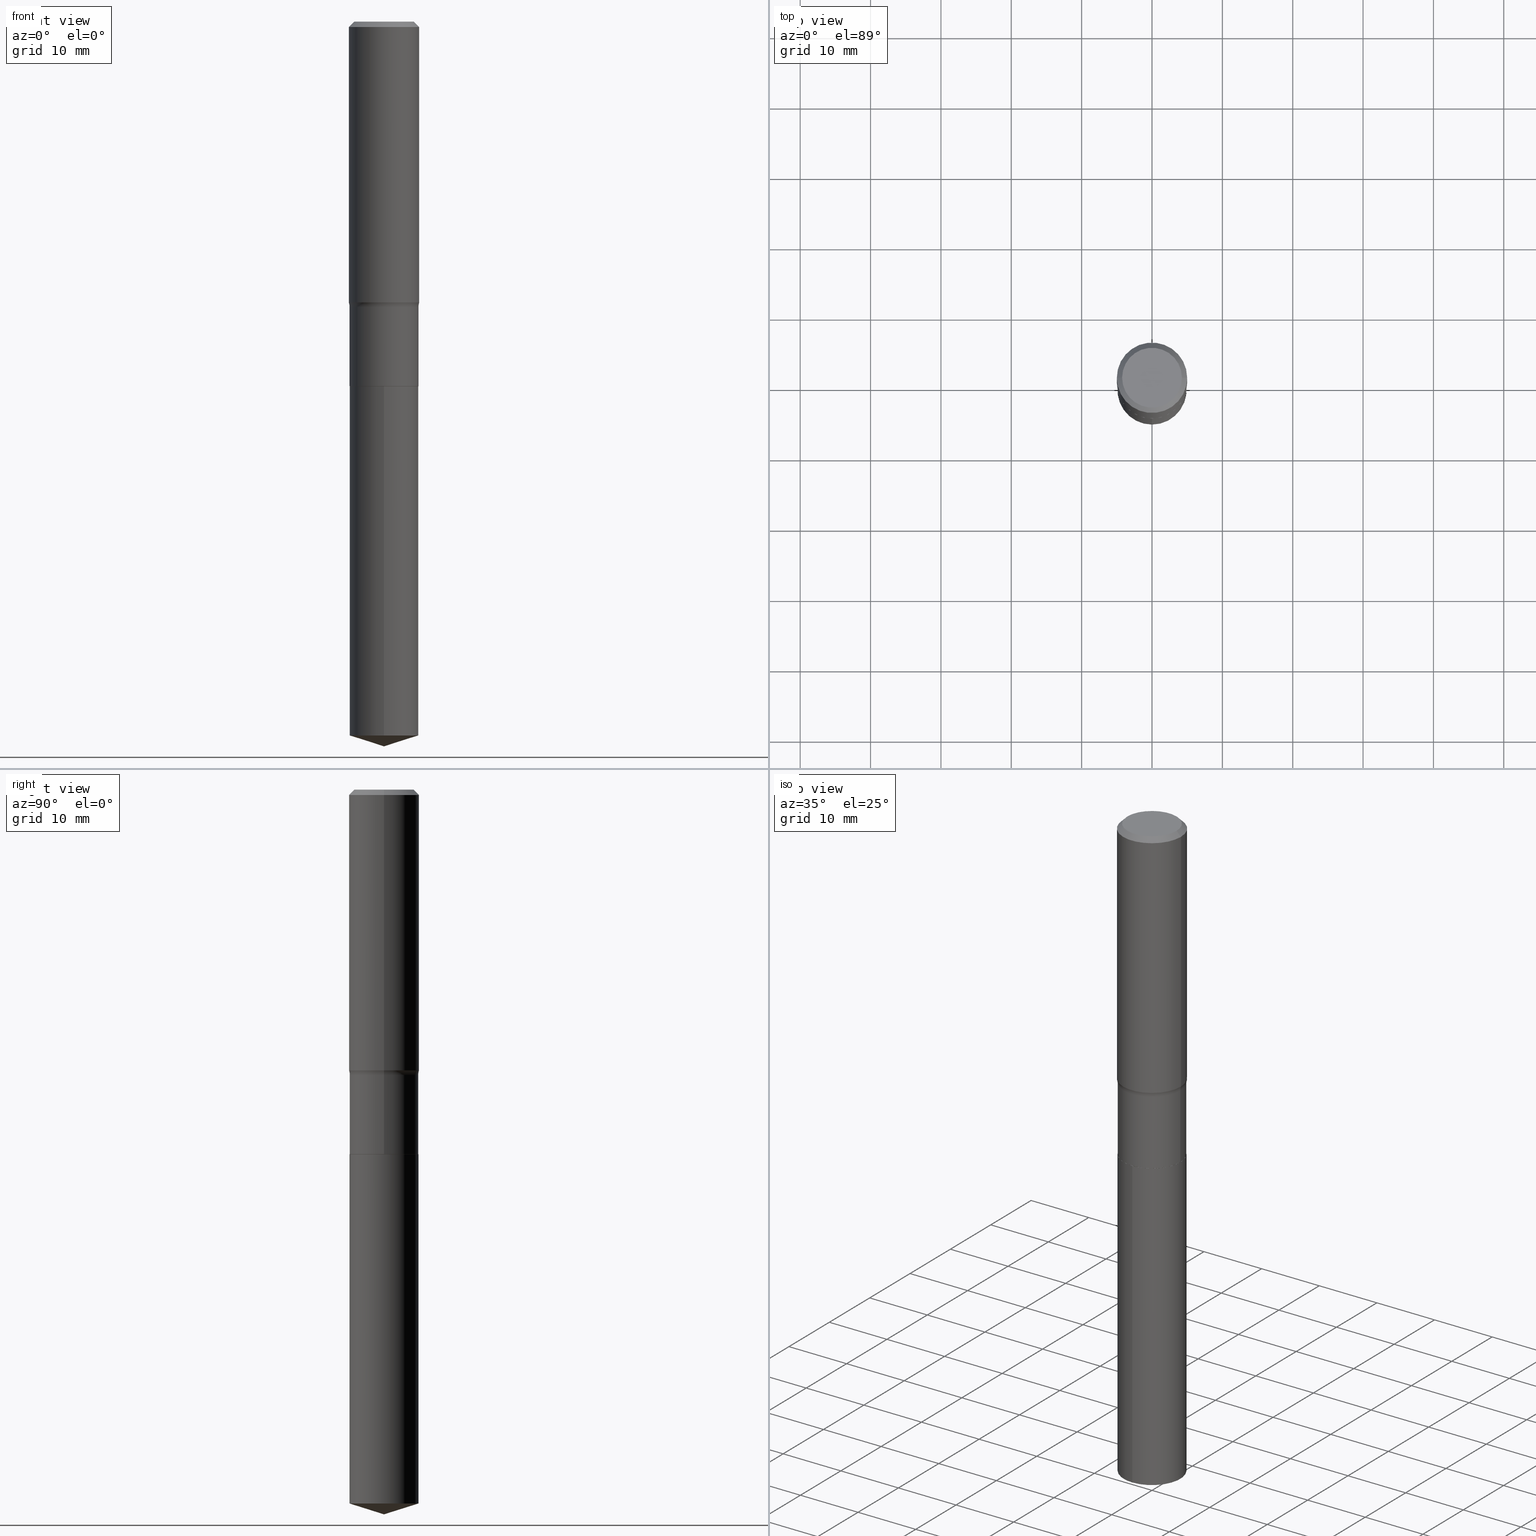
[diagram: canonical four-view strip — front | top / right | iso, engineering-drawing reading convention]
A machine part, canonical four-view strip (front | top / right | iso — engineering-drawing reading convention). The complete STEP part file that produces these views, byte-faithful:
ISO-10303-21;
HEADER;
FILE_DESCRIPTION (( 'STEP AP203' ),
    '1' );
FILE_NAME ('64172.STEP',
    '2024-04-19T15:27:30',
    ( '' ),
    ( '' ),
    'SwSTEP 2.0',
    'SolidWorks 2023',
    '' );
FILE_SCHEMA (( 'CONFIG_CONTROL_DESIGN' ));
ENDSEC;

DATA;
#1 = CIRCLE ( 'NONE', #356, 0.1968500000000000250 ) ;
#2 = PERSON_AND_ORGANIZATION ( #176, #197 ) ;
#3 = EDGE_LOOP ( 'NONE', ( #14, #150, #79, #184 ) ) ;
#4 = ORIENTED_EDGE ( 'NONE', *, *, #112, .F. ) ;
#5 = CARTESIAN_POINT ( 'NONE',  ( 3.901990027149005041E-29, -5.571007624258123859E-15, -1.595600000000000351 ) ) ;
#6 = CIRCLE ( 'NONE', #445, 0.1928999999999999881 ) ;
#7 = EDGE_LOOP ( 'NONE', ( #147, #271 ) ) ;
#8 = VECTOR ( 'NONE', #275, 39.37007874015748143 ) ;
#9 = DIRECTION ( 'NONE',  ( -2.445554267651848899E-29, 3.491358953158648949E-15, 1.000000000000000000 ) ) ;
#10 = AXIS2_PLACEMENT_3D ( 'NONE', #238, #474, #290 ) ;
#11 = CIRCLE ( 'NONE', #141, 0.1673224999999999851 ) ;
#12 = DIRECTION ( 'NONE',  ( -6.982962677686265133E-15, -1.000000000000000000, 2.832398127179122126E-15 ) ) ;
#13 = CARTESIAN_POINT ( 'NONE',  ( -0.1673224999999999851, 1.219954130253505263E-15, 4.096137381439757534E-18 ) ) ;
#14 = ORIENTED_EDGE ( 'NONE', *, *, #112, .T. ) ;
#15 = DIRECTION ( 'NONE',  ( 2.445468806185136597E-29, -3.491481338843145583E-15, -1.000000000000000000 ) ) ;
#16 = DIRECTION ( 'NONE',  ( -2.445554267651848899E-29, 3.491358953158648949E-15, 1.000000000000000000 ) ) ;
#17 = CARTESIAN_POINT ( 'NONE',  ( -1.001697619218021790E-46, 1.430158722866389718E-32, 4.096137381448108366E-18 ) ) ;
#18 = VECTOR ( 'NONE', #62, 39.37007874015748143 ) ;
#19 = CARTESIAN_POINT ( 'NONE',  ( 1.370636937281282873E-15, 0.1928999999999928272, -2.039300000000000779 ) ) ;
#20 = DIRECTION ( 'NONE',  ( 1.000000000000000000, -6.982962677686265922E-15, 0.000000000000000000 ) ) ;
#21 = DATE_TIME_ROLE ( 'classification_date' ) ;
#22 = EDGE_CURVE ( 'NONE', #254, #371, #113, .T. ) ;
#23 = CARTESIAN_POINT ( 'NONE',  ( 4.987044536453349004E-29, -7.120177894302827657E-15, -2.039299999999999891 ) ) ;
#24 = CIRCLE ( 'NONE', #252, 0.1968500000000002470 ) ;
#25 = DIRECTION ( 'NONE',  ( -2.445554267651849179E-29, 3.491358953158648949E-15, 1.000000000000000000 ) ) ;
#26 = FACE_OUTER_BOUND ( 'NONE', #261, .T. ) ;
#27 = APPROVAL_DATE_TIME ( #94, #180 ) ;
#28 = DIRECTION ( 'NONE',  ( 1.000000000000000000, -6.982962677686266711E-15, 0.000000000000000000 ) ) ;
#29 = CC_DESIGN_PERSON_AND_ORGANIZATION_ASSIGNMENT ( #2, #105, ( #397 ) ) ;
#30 = DATE_TIME_ROLE ( 'creation_date' ) ;
#31 = VECTOR ( 'NONE', #201, 39.37007874015748143 ) ;
#32 = ORIENTED_EDGE ( 'NONE', *, *, #478, .F. ) ;
#33 = EDGE_LOOP ( 'NONE', ( #50, #451, #328, #491 ) ) ;
#34 = EDGE_CURVE ( 'NONE', #38, #301, #81, .T. ) ;
#35 = ORIENTED_EDGE ( 'NONE', *, *, #367, .T. ) ;
#36 = CARTESIAN_POINT ( 'NONE',  ( 0.000000000000000000, 0.000000000000000000, 0.000000000000000000 ) ) ;
#37 = CIRCLE ( 'NONE', #78, 0.07800000000000002764 ) ;
#38 = VERTEX_POINT ( 'NONE', #346 ) ;
#39 = AXIS2_PLACEMENT_3D ( 'NONE', #233, #386, #391 ) ;
#40 = ORIENTED_EDGE ( 'NONE', *, *, #423, .T. ) ;
#41 = DIRECTION ( 'NONE',  ( -6.982962677686265133E-15, -1.000000000000000000, 2.832398127179122126E-15 ) ) ;
#42 = EDGE_CURVE ( 'NONE', #447, #257, #448, .T. ) ;
#43 = CC_DESIGN_APPROVAL ( #180, ( #52 ) ) ;
#44 = FACE_OUTER_BOUND ( 'NONE', #292, .T. ) ;
#45 = LINE ( 'NONE', #311, #300 ) ;
#46 = ORIENTED_EDGE ( 'NONE', *, *, #178, .T. ) ;
#47 = ADVANCED_FACE ( 'NONE', ( #44 ), #335, .T. ) ;
#48 = DIRECTION ( 'NONE',  ( -2.445554267651848899E-29, 3.491358953158648949E-15, 1.000000000000000000 ) ) ;
#49 = ADVANCED_FACE ( 'NONE', ( #395 ), #212, .T. ) ;
#50 = ORIENTED_EDGE ( 'NONE', *, *, #316, .T. ) ;
#51 = CARTESIAN_POINT ( 'NONE',  ( -1.347013500525630576E-15, -0.1929000000000071213, -2.039299999999999446 ) ) ;
#52 = PRODUCT_DEFINITION_FORMATION_WITH_SPECIFIED_SOURCE ( 'ANY', '', #397, .NOT_KNOWN. ) ;
#53 = CARTESIAN_POINT ( 'NONE',  ( 9.916970167242287557E-29, -1.415780969095363941E-14, -4.055100000000000371 ) ) ;
#54 = VECTOR ( 'NONE', #189, 39.37007874015748143 ) ;
#55 = ADVANCED_FACE ( 'NONE', ( #425 ), #77, .F. ) ;
#56 = CARTESIAN_POINT ( 'NONE',  ( 4.987044536453349565E-29, -7.120177894302827657E-15, -2.039300000000000335 ) ) ;
#57 = ORIENTED_EDGE ( 'NONE', *, *, #178, .F. ) ;
#58 = DIRECTION ( 'NONE',  ( -0.7071067811865452413, 2.468850131082233000E-15, -0.7071067811865497932 ) ) ;
#59 = PERSON_AND_ORGANIZATION ( #176, #197 ) ;
#60 = EDGE_CURVE ( 'NONE', #301, #38, #151, .T. ) ;
#61 = CARTESIAN_POINT ( 'NONE',  ( 0.1928999999999999049, -6.918021124783804133E-15, -1.595600000000000351 ) ) ;
#62 = DIRECTION ( 'NONE',  ( 0.7071067811864267805, -2.468850131080992517E-15, 0.7071067811866682540 ) ) ;
#63 = ORIENTED_EDGE ( 'NONE', *, *, #34, .T. ) ;
#64 = PERSON_AND_ORGANIZATION ( #176, #197 ) ;
#65 = DIRECTION ( 'NONE',  ( 1.000000000000000000, -6.982962677686267499E-15, 4.876294436782262290E-29 ) ) ;
#66 = CARTESIAN_POINT ( 'NONE',  ( 3.901990027149005041E-29, -5.571007624258123859E-15, -1.595600000000000351 ) ) ;
#67 = CALENDAR_DATE ( 2024, 19, 4 ) ;
#68 = AXIS2_PLACEMENT_3D ( 'NONE', #318, #475, #121 ) ;
#69 = DIRECTION ( 'NONE',  ( -2.445468806185136597E-29, 3.491481338843145583E-15, 1.000000000000000000 ) ) ;
#70 = CIRCLE ( 'NONE', #163, 0.1968500000000002470 ) ;
#71 = ADVANCED_FACE ( 'NONE', ( #244 ), #382, .F. ) ;
#72 =( NAMED_UNIT ( * ) PLANE_ANGLE_UNIT ( ) SI_UNIT ( $, .RADIAN. ) );
#73 = DIRECTION ( 'NONE',  ( 1.000000000000000000, 0.000000000000000000, 0.000000000000000000 ) ) ;
#74 = CIRCLE ( 'NONE', #186, 0.1928999999999999049 ) ;
#75 = PERSON_AND_ORGANIZATION ( #176, #197 ) ;
#76 = CARTESIAN_POINT ( 'NONE',  ( 0.000000000000000000, 0.000000000000000000, 0.000000000000000000 ) ) ;
#77 = PLANE ( 'NONE',  #465 ) ;
#78 = AXIS2_PLACEMENT_3D ( 'NONE', #403, #277, #196 ) ;
#79 = ORIENTED_EDGE ( 'NONE', *, *, #367, .F. ) ;
#80 = EDGE_CURVE ( 'NONE', #301, #254, #442, .T. ) ;
#81 = CIRCLE ( 'NONE', #39, 0.1923999999999999877 ) ;
#82 = CARTESIAN_POINT ( 'NONE',  ( 1.370636937281330796E-15, 0.1928999999999860826, -3.994278863625245535 ) ) ;
#83 = CARTESIAN_POINT ( 'NONE',  ( 0.000000000000000000, 0.000000000000000000, 0.000000000000000000 ) ) ;
#84 = DIRECTION ( 'NONE',  ( -2.445468806185136877E-29, 3.491481338843145188E-15, 1.000000000000000000 ) ) ;
#85 = APPROVAL ( #405, 'UNSPECIFIED' ) ;
#86 = DIRECTION ( 'NONE',  ( 1.000000000000000000, -6.982962677686266711E-15, 0.000000000000000000 ) ) ;
#87 = CARTESIAN_POINT ( 'NONE',  ( 4.987044536453349004E-29, -7.120177894302827657E-15, -2.039299999999999891 ) ) ;
#88 = DIRECTION ( 'NONE',  ( -6.982962677686266711E-15, -1.000000000000000000, 3.491481338843145583E-15 ) ) ;
#89 = DIRECTION ( 'NONE',  ( -2.445468806185136597E-29, 3.491481338843145583E-15, 1.000000000000000000 ) ) ;
#90 = CARTESIAN_POINT ( 'NONE',  ( -1.347013500525583047E-15, -0.1929000000000139492, -3.994278863625244647 ) ) ;
#91 = CARTESIAN_POINT ( 'NONE',  ( 7.220858017463213864E-31, -1.030947152326917226E-16, -0.02952750000000021330 ) ) ;
#92 = CARTESIAN_POINT ( 'NONE',  ( 0.1923999999999999877, -8.463699913489665713E-15, -2.039300000000000335 ) ) ;
#93 = ORIENTED_EDGE ( 'NONE', *, *, #490, .T. ) ;
#94 = DATE_AND_TIME ( #124, #333 ) ;
#95 = DIRECTION ( 'NONE',  ( -6.982962677686266711E-15, -1.000000000000000000, 3.500519750498693388E-15 ) ) ;
#96 = CARTESIAN_POINT ( 'NONE',  ( 7.220858017463213864E-31, -1.030947152326917226E-16, -0.02952750000000021330 ) ) ;
#97 = PERSON_AND_ORGANIZATION_ROLE ( 'creator' ) ;
#98 = VECTOR ( 'NONE', #211, 39.37007874015748143 ) ;
#99 = AXIS2_PLACEMENT_3D ( 'NONE', #253, #280, #28 ) ;
#100 = ORIENTED_EDGE ( 'NONE', *, *, #195, .F. ) ;
#101 = CC_DESIGN_SECURITY_CLASSIFICATION ( #396, ( #52 ) ) ;
#102 = MANIFOLD_SOLID_BREP ( 'Body-Move/Copy2[2]', #325 ) ;
#103 = ORIENTED_EDGE ( 'NONE', *, *, #316, .F. ) ;
#104 = ORIENTED_EDGE ( 'NONE', *, *, #441, .T. ) ;
#105 = PERSON_AND_ORGANIZATION_ROLE ( 'design_owner' ) ;
#106 = CARTESIAN_POINT ( 'NONE',  ( 7.220858017463213864E-31, -1.030947152326917226E-16, -0.02952750000000021330 ) ) ;
#107 = AXIS2_PLACEMENT_3D ( 'NONE', #265, #352, #12 ) ;
#108 = FACE_OUTER_BOUND ( 'NONE', #132, .T. ) ;
#109 = ORIENTED_EDGE ( 'NONE', *, *, #42, .T. ) ;
#110 = DESIGN_CONTEXT ( 'detailed design', #462, 'design' ) ;
#111 = CARTESIAN_POINT ( 'NONE',  ( -0.1968500000000000250, -1.395564769284339934E-15, -0.02952750000000021330 ) ) ;
#112 = EDGE_CURVE ( 'NONE', #254, #389, #293, .T. ) ;
#113 = LINE ( 'NONE', #459, #54 ) ;
#114 = CARTESIAN_POINT ( 'NONE',  ( -0.1968500000000002470, -4.086738198679745970E-15, -1.571092909189378828 ) ) ;
#115 = VECTOR ( 'NONE', #393, 39.37007874015748854 ) ;
#116 = CARTESIAN_POINT ( 'NONE',  ( 9.768051439561228148E-29, -1.394571085305674825E-14, -3.994278863625245091 ) ) ;
#117 = DIRECTION ( 'NONE',  ( -0.7071067811864267805, 7.493145998869918709E-15, 0.7071067811866682540 ) ) ;
#118 = FACE_OUTER_BOUND ( 'NONE', #416, .T. ) ;
#119 = FACE_OUTER_BOUND ( 'NONE', #379, .T. ) ;
#120 = CARTESIAN_POINT ( 'NONE',  ( 0.1968500000000000250, -1.453583746094017706E-15, -0.02952750000000021330 ) ) ;
#121 = DIRECTION ( 'NONE',  ( -6.982962677686266711E-15, -1.000000000000000000, 3.500519750498693388E-15 ) ) ;
#122 = CONICAL_SURFACE ( 'NONE', #148, 124.8659371009154597, 1.265363707695892570 ) ;
#123 = EDGE_LOOP ( 'NONE', ( #32, #218, #466, #456 ) ) ;
#124 = CALENDAR_DATE ( 2024, 19, 4 ) ;
#125 = AXIS2_PLACEMENT_3D ( 'NONE', #444, #213, #136 ) ;
#126 = CARTESIAN_POINT ( 'NONE',  ( 0.1673224999999999851, -1.300749711163072397E-15, 4.096137381456741925E-18 ) ) ;
#127 = AXIS2_PLACEMENT_3D ( 'NONE', #56, #69, #229 ) ;
#128 = ORIENTED_EDGE ( 'NONE', *, *, #214, .T. ) ;
#129 = CALENDAR_DATE ( 2024, 19, 4 ) ;
#130 = FACE_OUTER_BOUND ( 'NONE', #123, .T. ) ;
#131 = LINE ( 'NONE', #481, #98 ) ;
#132 = EDGE_LOOP ( 'NONE', ( #385, #128 ) ) ;
#133 = EDGE_CURVE ( 'NONE', #227, #337, #1, .T. ) ;
#134 = CYLINDRICAL_SURFACE ( 'NONE', #125, 0.1928999999999999326 ) ;
#135 = ORIENTED_EDGE ( 'NONE', *, *, #195, .T. ) ;
#136 = DIRECTION ( 'NONE',  ( 1.000000000000000000, -6.982962677686267499E-15, 4.876176775795936353E-29 ) ) ;
#137 = ORIENTED_EDGE ( 'NONE', *, *, #42, .F. ) ;
#138 = APPROVAL_ROLE ( '' ) ;
#139 = AXIS2_PLACEMENT_3D ( 'NONE', #5, #457, #193 ) ;
#140 = COORDINATED_UNIVERSAL_TIME_OFFSET ( 5, 0, .BEHIND. ) ;
#141 = AXIS2_PLACEMENT_3D ( 'NONE', #461, #374, #65 ) ;
#142 = ADVANCED_FACE ( 'NONE', ( #26 ), #341, .F. ) ;
#143 = ADVANCED_FACE ( 'NONE', ( #329 ), #134, .T. ) ;
#144 = CIRCLE ( 'NONE', #255, 0.1968500000000000250 ) ;
#145 = AXIS2_PLACEMENT_3D ( 'NONE', #208, #446, #364 ) ;
#146 = CARTESIAN_POINT ( 'NONE',  ( 0.1923999999999999877, -8.463699913489665713E-15, -2.039300000000000335 ) ) ;
#147 = ORIENTED_EDGE ( 'NONE', *, *, #60, .F. ) ;
#148 = AXIS2_PLACEMENT_3D ( 'NONE', #168, #273, #95 ) ;
#149 = DIRECTION ( 'NONE',  ( -2.445468806185136597E-29, 3.491481338843145583E-15, 1.000000000000000000 ) ) ;
#150 = ORIENTED_EDGE ( 'NONE', *, *, #478, .T. ) ;
#151 = CIRCLE ( 'NONE', #99, 0.1923999999999999877 ) ;
#152 = ADVANCED_FACE ( 'NONE', ( #119 ), #294, .T. ) ;
#153 = DIRECTION ( 'NONE',  ( -1.000000000000000000, 6.982962677686265922E-15, 0.000000000000000000 ) ) ;
#154 = FACE_OUTER_BOUND ( 'NONE', #155, .T. ) ;
#155 = EDGE_LOOP ( 'NONE', ( #46, #450, #349, #100 ) ) ;
#156 = EDGE_LOOP ( 'NONE', ( #424, #344, #340, #313 ) ) ;
#157 = DIRECTION ( 'NONE',  ( -2.445468806185136597E-29, 3.491481338843145583E-15, 1.000000000000000000 ) ) ;
#158 = AXIS2_PLACEMENT_3D ( 'NONE', #17, #479, #162 ) ;
#159 = ADVANCED_FACE ( 'NONE', ( #400 ), #438, .T. ) ;
#160 = ORIENTED_EDGE ( 'NONE', *, *, #243, .F. ) ;
#161 = CC_DESIGN_DATE_AND_TIME_ASSIGNMENT ( #437, #30, ( #449 ) ) ;
#162 = DIRECTION ( 'NONE',  ( 1.000000000000000000, -6.982962677686267499E-15, 4.876294436782262290E-29 ) ) ;
#163 = AXIS2_PLACEMENT_3D ( 'NONE', #323, #89, #247 ) ;
#164 = CARTESIAN_POINT ( 'NONE',  ( 0.1968500000000002470, -6.860037777126047733E-15, -1.571092909189378828 ) ) ;
#165 = FACE_OUTER_BOUND ( 'NONE', #302, .T. ) ;
#166 = ORIENTED_EDGE ( 'NONE', *, *, #214, .F. ) ;
#167 = DATE_AND_TIME ( #67, #426 ) ;
#168 = CARTESIAN_POINT ( 'NONE',  ( -8.636487125159550916E-28, 1.232970176239297701E-13, 35.31497874015747840 ) ) ;
#169 = CONICAL_SURFACE ( 'NONE', #68, 124.8659371009154597, 1.265363707695892570 ) ;
#170 = APPROVAL_ROLE ( '' ) ;
#171 = DIRECTION ( 'NONE',  ( -2.445554267651848899E-29, 3.491358953158648949E-15, 1.000000000000000000 ) ) ;
#172 = EDGE_LOOP ( 'NONE', ( #419, #63, #365, #160 ) ) ;
#173 = DATE_AND_TIME ( #330, #179 ) ;
#174 = PERSON_AND_ORGANIZATION_ROLE ( 'creator' ) ;
#175 =( CONVERSION_BASED_UNIT ( 'INCH', #376 ) LENGTH_UNIT ( ) NAMED_UNIT ( #428 ) );
#176 = PERSON ( 'UNSPECIFIED', 'UNSPECIFIED', 'UNSPECIFIED', ('UNSPECIFIED'), ('UNSPECIFIED'), ('UNSPECIFIED') ) ;
#177 = PERSON_AND_ORGANIZATION_ROLE ( 'classification_officer' ) ;
#178 = EDGE_CURVE ( 'NONE', #257, #447, #415, .T. ) ;
#179 = LOCAL_TIME ( 11, 27, 30.00000000000000000, #411 ) ;
#180 = APPROVAL ( #486, 'UNSPECIFIED' ) ;
#181 = AXIS2_PLACEMENT_3D ( 'NONE', #306, #15, #153 ) ;
#182 = EDGE_LOOP ( 'NONE', ( #319, #103, #362, #35 ) ) ;
#183 = EDGE_CURVE ( 'NONE', #384, #337, #232, .T. ) ;
#184 = ORIENTED_EDGE ( 'NONE', *, *, #22, .F. ) ;
#185 = CC_DESIGN_PERSON_AND_ORGANIZATION_ASSIGNMENT ( #64, #174, ( #449 ) ) ;
#186 = AXIS2_PLACEMENT_3D ( 'NONE', #66, #157, #436 ) ;
#187 = VERTEX_POINT ( 'NONE', #114 ) ;
#188 = CARTESIAN_POINT ( 'NONE',  ( 3.842058701041283237E-29, -5.485441574023504547E-15, -1.571092909189378828 ) ) ;
#189 = DIRECTION ( 'NONE',  ( -2.445468806185136877E-29, 3.491481338843145188E-15, 1.000000000000000000 ) ) ;
#190 = AXIS2_PLACEMENT_3D ( 'NONE', #471, #88, #251 ) ;
#191 = DIRECTION ( 'NONE',  ( 2.445554267651848618E-29, -3.491358953158648949E-15, -1.000000000000000000 ) ) ;
#192 = CIRCLE ( 'NONE', #390, 0.1928999999999999881 ) ;
#193 = DIRECTION ( 'NONE',  ( 1.000000000000000000, -6.982962677686267499E-15, 0.000000000000000000 ) ) ;
#194 = LINE ( 'NONE', #307, #383 ) ;
#195 = EDGE_CURVE ( 'NONE', #257, #358, #45, .T. ) ;
#196 = DIRECTION ( 'NONE',  ( -1.000000000000000000, 7.105427357601001859E-15, 0.000000000000000000 ) ) ;
#197 = ORGANIZATION ( 'UNSPECIFIED', 'UNSPECIFIED', '' ) ;
#198 = AXIS2_PLACEMENT_3D ( 'NONE', #343, #9, #41 ) ;
#199 = DIRECTION ( 'NONE',  ( -2.445468806185136597E-29, 3.491481338843145583E-15, 1.000000000000000000 ) ) ;
#200 = CLOSED_SHELL ( 'NONE', ( #297, #492, #463, #453, #336 ) ) ;
#201 = DIRECTION ( 'NONE',  ( 6.776566513254258926E-15, 0.9537169507482290420, 0.3007057995042663467 ) ) ;
#202 = DIRECTION ( 'NONE',  ( 1.000000000000000000, -6.982962677686268288E-15, 4.883557194083114022E-29 ) ) ;
#203 = COORDINATED_UNIVERSAL_TIME_OFFSET ( 5, 0, .BEHIND. ) ;
#204 = DIRECTION ( 'NONE',  ( -6.982962677686265133E-15, -1.000000000000000000, 2.832398127179122126E-15 ) ) ;
#205 = CARTESIAN_POINT ( 'NONE',  ( -0.1968500000000000250, 1.271501487869850120E-15, -0.02952750000000021330 ) ) ;
#206 = PERSON_AND_ORGANIZATION_ROLE ( 'design_supplier' ) ;
#207 = DIRECTION ( 'NONE',  ( -2.445554267651848899E-29, 3.491358953158648949E-15, 1.000000000000000000 ) ) ;
#208 = CARTESIAN_POINT ( 'NONE',  ( 4.985821802050256763E-29, -7.118432153633405364E-15, -2.038800000000000168 ) ) ;
#209 = LOCAL_TIME ( 11, 27, 30.00000000000000000, #140 ) ;
#210 = DIRECTION ( 'NONE',  ( -1.000000000000000000, 6.982962677686265922E-15, -4.876176775795935793E-29 ) ) ;
#211 = DIRECTION ( 'NONE',  ( -2.445468806185136877E-29, 3.491481338843145188E-15, 1.000000000000000000 ) ) ;
#212 = CONICAL_SURFACE ( 'NONE', #310, 0.1968500000000000250, 0.7853981633974450594 ) ;
#213 = DIRECTION ( 'NONE',  ( -2.445468806185136597E-29, 3.491481338843145583E-15, 1.000000000000000000 ) ) ;
#214 = EDGE_CURVE ( 'NONE', #476, #358, #348, .T. ) ;
#215 = LOCAL_TIME ( 11, 27, 30.00000000000000000, #203 ) ;
#216 = AXIS2_PLACEMENT_3D ( 'NONE', #87, #48, #354 ) ;
#217 = ORIENTED_EDGE ( 'NONE', *, *, #369, .T. ) ;
#218 = ORIENTED_EDGE ( 'NONE', *, *, #243, .T. ) ;
#219 = ORIENTED_EDGE ( 'NONE', *, *, #406, .F. ) ;
#220 = MECHANICAL_CONTEXT ( 'NONE', #433, 'mechanical' ) ;
#221 = ORIENTED_EDGE ( 'NONE', *, *, #441, .F. ) ;
#222 = AXIS2_PLACEMENT_3D ( 'NONE', #284, #485, #202 ) ;
#223 = ORIENTED_EDGE ( 'NONE', *, *, #392, .F. ) ;
#224 = EDGE_CURVE ( 'NONE', #187, #227, #194, .T. ) ;
#225 = ORIENTED_EDGE ( 'NONE', *, *, #406, .T. ) ;
#226 = DIRECTION ( 'NONE',  ( -2.445468806185136597E-29, 3.491481338843145583E-15, 1.000000000000000000 ) ) ;
#227 = VERTEX_POINT ( 'NONE', #111 ) ;
#228 = ADVANCED_FACE ( 'NONE', ( #472 ), #430, .T. ) ;
#229 = DIRECTION ( 'NONE',  ( 1.000000000000000000, -6.982962677686266711E-15, 0.000000000000000000 ) ) ;
#230 = ORIENTED_EDGE ( 'NONE', *, *, #133, .T. ) ;
#231 = CC_DESIGN_PERSON_AND_ORGANIZATION_ASSIGNMENT ( #59, #97, ( #52 ) ) ;
#232 = LINE ( 'NONE', #120, #8 ) ;
#233 = CARTESIAN_POINT ( 'NONE',  ( 4.987044536453349565E-29, -7.120177894302827657E-15, -2.039300000000000335 ) ) ;
#234 = CARTESIAN_POINT ( 'NONE',  ( 9.916618547616880749E-29, -1.415830885320642584E-14, -4.055100000000000371 ) ) ;
#235 = VERTEX_POINT ( 'NONE', #164 ) ;
#236 = FACE_OUTER_BOUND ( 'NONE', #378, .T. ) ;
#237 = APPROVAL_PERSON_ORGANIZATION ( #409, #180, #138 ) ;
#238 = CARTESIAN_POINT ( 'NONE',  ( 3.901990027149005041E-29, -5.571007624258123859E-15, -1.595600000000000351 ) ) ;
#239 = APPROVAL_STATUS ( 'not_yet_approved' ) ;
#240 = CARTESIAN_POINT ( 'NONE',  ( 0.1928999999999999881, -8.465445654159086427E-15, -2.038800000000000168 ) ) ;
#241 = FACE_OUTER_BOUND ( 'NONE', #33, .T. ) ;
#242 = AXIS2_PLACEMENT_3D ( 'NONE', #410, #360, #210 ) ;
#243 = EDGE_CURVE ( 'NONE', #389, #254, #192, .T. ) ;
#244 = FACE_OUTER_BOUND ( 'NONE', #182, .T. ) ;
#245 = SECURITY_CLASSIFICATION_LEVEL ( 'unclassified' ) ;
#246 = CC_DESIGN_PERSON_AND_ORGANIZATION_ASSIGNMENT ( #373, #206, ( #52 ) ) ;
#247 = DIRECTION ( 'NONE',  ( 1.000000000000000000, -6.982962677686265133E-15, 0.000000000000000000 ) ) ;
#248 = CARTESIAN_POINT ( 'NONE',  ( -0.1928999999999999049, -4.974082951664532029E-15, -1.595600000000000351 ) ) ;
#249 = ORIENTED_EDGE ( 'NONE', *, *, #80, .F. ) ;
#250 = COORDINATED_UNIVERSAL_TIME_OFFSET ( 5, 0, .BEHIND. ) ;
#251 = DIRECTION ( 'NONE',  ( 1.000000000000000000, -6.982962677686268288E-15, 0.000000000000000000 ) ) ;
#252 = AXIS2_PLACEMENT_3D ( 'NONE', #188, #149, #464 ) ;
#253 = CARTESIAN_POINT ( 'NONE',  ( 4.987044536453349565E-29, -7.120177894302827657E-15, -2.039300000000000335 ) ) ;
#254 = VERTEX_POINT ( 'NONE', #240 ) ;
#255 = AXIS2_PLACEMENT_3D ( 'NONE', #91, #361, #270 ) ;
#256 = ORIENTED_EDGE ( 'NONE', *, *, #387, .F. ) ;
#257 = VERTEX_POINT ( 'NONE', #90 ) ;
#258 = DIRECTION ( 'NONE',  ( 1.000000000000000000, -6.982962677686267499E-15, 4.876176775795936353E-29 ) ) ;
#259 = CC_DESIGN_APPROVAL ( #260, ( #449 ) ) ;
#260 = APPROVAL ( #239, 'UNSPECIFIED' ) ;
#261 = EDGE_LOOP ( 'NONE', ( #452, #217, #285, #256 ) ) ;
#262 = MANIFOLD_SOLID_BREP ( 'Body-Move/Copy2[1]', #200 ) ;
#263 = PLANE ( 'NONE',  #298 ) ;
#264 = EDGE_CURVE ( 'NONE', #338, #384, #11, .T. ) ;
#265 = CARTESIAN_POINT ( 'NONE',  ( 9.768051439561228148E-29, -1.394571085305674825E-14, -3.994278863625245091 ) ) ;
#266 = CARTESIAN_POINT ( 'NONE',  ( 0.1968500000000000250, -1.477690918335233294E-15, -0.02952750000000021330 ) ) ;
#267 = DIRECTION ( 'NONE',  ( -2.438088387897960049E-29, 3.491481338843145188E-15, 1.000000000000000000 ) ) ;
#268 = ADVANCED_FACE ( 'NONE', ( #315 ), #320, .F. ) ;
#269 = DIRECTION ( 'NONE',  ( -2.445468806185136597E-29, 3.491481338843145583E-15, 1.000000000000000000 ) ) ;
#270 = DIRECTION ( 'NONE',  ( 1.000000000000000000, -6.982962677686265922E-15, 0.000000000000000000 ) ) ;
#271 = ORIENTED_EDGE ( 'NONE', *, *, #34, .F. ) ;
#272 = DIRECTION ( 'NONE',  ( -2.445468806185136877E-29, 3.491481338843145188E-15, 1.000000000000000000 ) ) ;
#273 = DIRECTION ( 'NONE',  ( -2.445554267651848899E-29, 3.491358953158648949E-15, 1.000000000000000000 ) ) ;
#274 = CARTESIAN_POINT ( 'NONE',  ( 4.987044536453349565E-29, -7.120177894302827657E-15, -2.039300000000000335 ) ) ;
#275 = DIRECTION ( 'NONE',  ( 0.7071067811865452413, -7.319954787623248157E-15, -0.7071067811865497932 ) ) ;
#276 = EDGE_CURVE ( 'NONE', #187, #235, #70, .T. ) ;
#277 = DIRECTION ( 'NONE',  ( 7.105427357601001859E-15, 1.000000000000000000, -3.491481338843145583E-15 ) ) ;
#278 = VECTOR ( 'NONE', #58, 39.37007874015748143 ) ;
#279 = CC_DESIGN_PERSON_AND_ORGANIZATION_ASSIGNMENT ( #286, #177, ( #396 ) ) ;
#280 = DIRECTION ( 'NONE',  ( -2.445468806185136597E-29, 3.491481338843145583E-15, 1.000000000000000000 ) ) ;
#281 = ORIENTED_EDGE ( 'NONE', *, *, #264, .T. ) ;
#282 = APPROVAL_DATE_TIME ( #402, #260 ) ;
#283 = CARTESIAN_POINT ( 'NONE',  ( -0.1923999999999999877, -5.753093670700395578E-15, -2.039300000000000335 ) ) ;
#284 = CARTESIAN_POINT ( 'NONE',  ( 3.901990027149005041E-29, -5.571007624258123859E-15, -1.595600000000000351 ) ) ;
#285 = ORIENTED_EDGE ( 'NONE', *, *, #305, .T. ) ;
#286 = PERSON_AND_ORGANIZATION ( #176, #197 ) ;
#287 = LINE ( 'NONE', #234, #115 ) ;
#288 = ADVANCED_FACE ( 'NONE', ( #130 ), #455, .T. ) ;
#289 =( LENGTH_UNIT ( ) NAMED_UNIT ( * ) SI_UNIT ( $, .METRE. ) );
#290 = DIRECTION ( 'NONE',  ( 1.000000000000000000, -6.982962677686268288E-15, 4.883557194083114022E-29 ) ) ;
#291 = VECTOR ( 'NONE', #84, 39.37007874015748143 ) ;
#292 = EDGE_LOOP ( 'NONE', ( #221, #454, #40, #299 ) ) ;
#293 = CIRCLE ( 'NONE', #145, 0.1928999999999999881 ) ;
#294 = CONICAL_SURFACE ( 'NONE', #327, 0.1923999999999999877, 0.7853981633972775267 ) ;
#295 = SHAPE_DEFINITION_REPRESENTATION ( #484, #381 ) ;
#296 = VERTEX_POINT ( 'NONE', #388 ) ;
#297 = ADVANCED_FACE ( 'NONE', ( #154 ), #345, .T. ) ;
#298 = AXIS2_PLACEMENT_3D ( 'NONE', #422, #191, #467 ) ;
#299 = ORIENTED_EDGE ( 'NONE', *, *, #412, .F. ) ;
#300 = VECTOR ( 'NONE', #351, 39.37007874015748143 ) ;
#301 = VERTEX_POINT ( 'NONE', #146 ) ;
#302 = EDGE_LOOP ( 'NONE', ( #219, #93, #57 ) ) ;
#303 = VECTOR ( 'NONE', #25, 39.37007874015748143 ) ;
#304 = DIRECTION ( 'NONE',  ( -1.000000000000000000, 6.982962677686265922E-15, 0.000000000000000000 ) ) ;
#305 = EDGE_CURVE ( 'NONE', #489, #371, #408, .T. ) ;
#306 = CARTESIAN_POINT ( 'NONE',  ( 7.220858017463213864E-31, -1.030947152326917226E-16, -0.02952750000000021330 ) ) ;
#307 = CARTESIAN_POINT ( 'NONE',  ( -0.1968500000000001082, 1.398703375343757985E-15, -9.682923725166787881E-30 ) ) ;
#308 = CIRCLE ( 'NONE', #158, 0.1673224999999999851 ) ;
#309 = DIRECTION ( 'NONE',  ( -6.982962677686265133E-15, -1.000000000000000000, 2.832398127179122126E-15 ) ) ;
#310 = AXIS2_PLACEMENT_3D ( 'NONE', #106, #469, #304 ) ;
#311 = CARTESIAN_POINT ( 'NONE',  ( -1.347013500525630576E-15, -0.1929000000000071213, -2.039299999999999446 ) ) ;
#312 = CYLINDRICAL_SURFACE ( 'NONE', #339, 0.1928999999999999881 ) ;
#313 = ORIENTED_EDGE ( 'NONE', *, *, #133, .F. ) ;
#314 = DIRECTION ( 'NONE',  ( -2.445468806185136597E-29, 3.491481338843145583E-15, 1.000000000000000000 ) ) ;
#315 = FACE_OUTER_BOUND ( 'NONE', #414, .T. ) ;
#316 = EDGE_CURVE ( 'NONE', #235, #187, #24, .T. ) ;
#317 = CARTESIAN_POINT ( 'NONE',  ( 4.985821802050256763E-29, -7.118432153633405364E-15, -2.038800000000000168 ) ) ;
#318 = CARTESIAN_POINT ( 'NONE',  ( -8.636487125159550916E-28, 1.232970176239297701E-13, 35.31497874015747840 ) ) ;
#319 = ORIENTED_EDGE ( 'NONE', *, *, #369, .F. ) ;
#320 = PLANE ( 'NONE',  #242 ) ;
#321 = CARTESIAN_POINT ( 'NONE',  ( -0.1928999999999999326, 1.370636937281232780E-15, -9.488625789101710361E-30 ) ) ;
#322 = APPROVAL_PERSON_ORGANIZATION ( #483, #85, #359 ) ;
#323 = CARTESIAN_POINT ( 'NONE',  ( 3.842058701041283237E-29, -5.485441574023504547E-15, -1.571092909189378828 ) ) ;
#324 = AXIS2_PLACEMENT_3D ( 'NONE', #83, #269, #398 ) ;
#325 = CLOSED_SHELL ( 'NONE', ( #152, #47, #427, #142, #143, #288, #71, #228, #49, #268, #55, #159 ) ) ;
#326 = LINE ( 'NONE', #283, #380 ) ;
#327 = AXIS2_PLACEMENT_3D ( 'NONE', #274, #432, #86 ) ;
#328 = ORIENTED_EDGE ( 'NONE', *, *, #423, .F. ) ;
#329 = FACE_OUTER_BOUND ( 'NONE', #3, .T. ) ;
#330 = CALENDAR_DATE ( 2024, 19, 4 ) ;
#331 = ORIENTED_EDGE ( 'NONE', *, *, #60, .T. ) ;
#332 = APPLICATION_PROTOCOL_DEFINITION ( 'international standard', 'config_control_design', 1994, #433 ) ;
#333 = LOCAL_TIME ( 11, 27, 30.00000000000000000, #366 ) ;
#334 = CALENDAR_DATE ( 2024, 19, 4 ) ;
#335 = CONICAL_SURFACE ( 'NONE', #181, 0.1968500000000000250, 0.7853981633974450594 ) ;
#336 = ADVANCED_FACE ( 'NONE', ( #108 ), #263, .F. ) ;
#337 = VERTEX_POINT ( 'NONE', #266 ) ;
#338 = VERTEX_POINT ( 'NONE', #13 ) ;
#339 = AXIS2_PLACEMENT_3D ( 'NONE', #23, #171, #357 ) ;
#340 = ORIENTED_EDGE ( 'NONE', *, *, #377, .T. ) ;
#341 = TOROIDAL_SURFACE ( 'NONE', #10, 0.2708999999999999186, 0.07799999999999999989 ) ;
#342 = PRODUCT_RELATED_PRODUCT_CATEGORY ( 'detail', '', ( #397 ) ) ;
#343 = CARTESIAN_POINT ( 'NONE',  ( 4.987044536453349004E-29, -7.120177894302827657E-15, -2.039299999999999891 ) ) ;
#344 = ORIENTED_EDGE ( 'NONE', *, *, #276, .T. ) ;
#345 = CYLINDRICAL_SURFACE ( 'NONE', #198, 0.1928999999999999881 ) ;
#346 = CARTESIAN_POINT ( 'NONE',  ( -0.1923999999999999877, -5.750444443526283588E-15, -2.039300000000000335 ) ) ;
#347 = AXIS2_PLACEMENT_3D ( 'NONE', #429, #407, #368 ) ;
#348 = CIRCLE ( 'NONE', #216, 0.1928999999999999881 ) ;
#349 = ORIENTED_EDGE ( 'NONE', *, *, #350, .F. ) ;
#350 = EDGE_CURVE ( 'NONE', #358, #476, #6, .T. ) ;
#351 = DIRECTION ( 'NONE',  ( -2.445554267651849179E-29, 3.491358953158648949E-15, 1.000000000000000000 ) ) ;
#352 = DIRECTION ( 'NONE',  ( -2.445554267651848899E-29, 3.491358953158648949E-15, 1.000000000000000000 ) ) ;
#353 = ORIENTED_EDGE ( 'NONE', *, *, #490, .F. ) ;
#354 = DIRECTION ( 'NONE',  ( -6.982962677686265133E-15, -1.000000000000000000, 2.832398127179122126E-15 ) ) ;
#355 = CYLINDRICAL_SURFACE ( 'NONE', #347, 0.1968500000000001082 ) ;
#356 = AXIS2_PLACEMENT_3D ( 'NONE', #96, #314, #20 ) ;
#357 = DIRECTION ( 'NONE',  ( -6.982962677686265133E-15, -1.000000000000000000, 2.832398127179122126E-15 ) ) ;
#358 = VERTEX_POINT ( 'NONE', #51 ) ;
#359 = APPROVAL_ROLE ( '' ) ;
#360 = DIRECTION ( 'NONE',  ( 2.438088387897960049E-29, -3.491481338843145188E-15, -1.000000000000000000 ) ) ;
#361 = DIRECTION ( 'NONE',  ( -2.445468806185136597E-29, 3.491481338843145583E-15, 1.000000000000000000 ) ) ;
#362 = ORIENTED_EDGE ( 'NONE', *, *, #387, .T. ) ;
#363 = CARTESIAN_POINT ( 'NONE',  ( 4.987044536453349004E-29, -7.120177894302827657E-15, -2.039299999999999891 ) ) ;
#364 = DIRECTION ( 'NONE',  ( 1.000000000000000000, -6.982962677686269077E-15, 0.000000000000000000 ) ) ;
#365 = ORIENTED_EDGE ( 'NONE', *, *, #80, .T. ) ;
#366 = COORDINATED_UNIVERSAL_TIME_OFFSET ( 5, 0, .BEHIND. ) ;
#367 = EDGE_CURVE ( 'NONE', #371, #489, #74, .T. ) ;
#368 = DIRECTION ( 'NONE',  ( 1.000000000000000000, -6.982962677686266711E-15, 4.876176775795935793E-29 ) ) ;
#369 = EDGE_CURVE ( 'NONE', #187, #489, #37, .T. ) ;
#370 = DIRECTION ( 'NONE',  ( 1.000000000000000000, -6.982962677686265922E-15, 4.876176775795935793E-29 ) ) ;
#371 = VERTEX_POINT ( 'NONE', #61 ) ;
#372 =( NAMED_UNIT ( * ) SI_UNIT ( $, .STERADIAN. ) SOLID_ANGLE_UNIT ( ) );
#373 = PERSON_AND_ORGANIZATION ( #176, #197 ) ;
#374 = DIRECTION ( 'NONE',  ( -2.445468806185136597E-29, 3.491481338843145583E-15, 1.000000000000000000 ) ) ;
#375 = UNCERTAINTY_MEASURE_WITH_UNIT (LENGTH_MEASURE( 1.000000000000000082E-05 ), #175, 'distance_accuracy_value', 'NONE');
#376 = LENGTH_MEASURE_WITH_UNIT ( LENGTH_MEASURE( 0.02539999999999999897 ), #289 );
#377 = EDGE_CURVE ( 'NONE', #235, #337, #131, .T. ) ;
#378 = EDGE_LOOP ( 'NONE', ( #353, #225, #137 ) ) ;
#379 = EDGE_LOOP ( 'NONE', ( #331, #421, #4, #249 ) ) ;
#380 = VECTOR ( 'NONE', #117, 39.37007874015748143 ) ;
#381 = ADVANCED_BREP_SHAPE_REPRESENTATION ( '64172', ( #262, #102, #477 ), #434 ) ;
#382 = TOROIDAL_SURFACE ( 'NONE', #222, 0.2708999999999999186, 0.07799999999999999989 ) ;
#383 = VECTOR ( 'NONE', #272, 39.37007874015748143 ) ;
#384 = VERTEX_POINT ( 'NONE', #126 ) ;
#385 = ORIENTED_EDGE ( 'NONE', *, *, #350, .T. ) ;
#386 = DIRECTION ( 'NONE',  ( -2.445468806185136597E-29, 3.491481338843145583E-15, 1.000000000000000000 ) ) ;
#387 = EDGE_CURVE ( 'NONE', #235, #371, #418, .T. ) ;
#388 = CARTESIAN_POINT ( 'NONE',  ( 9.916967110755012437E-29, -1.415780969095363783E-14, -4.055100000000000371 ) ) ;
#389 = VERTEX_POINT ( 'NONE', #401 ) ;
#390 = AXIS2_PLACEMENT_3D ( 'NONE', #317, #199, #435 ) ;
#391 = DIRECTION ( 'NONE',  ( 1.000000000000000000, -6.982962677686266711E-15, 0.000000000000000000 ) ) ;
#392 = EDGE_CURVE ( 'NONE', #447, #476, #443, .T. ) ;
#393 = DIRECTION ( 'NONE',  ( -6.659769872151633666E-15, -0.9537169507482269326, 0.3007057995042729526 ) ) ;
#394 = CC_DESIGN_DATE_AND_TIME_ASSIGNMENT ( #173, #21, ( #396 ) ) ;
#395 = FACE_OUTER_BOUND ( 'NONE', #440, .T. ) ;
#396 = SECURITY_CLASSIFICATION ( '', '', #245 ) ;
#397 = PRODUCT ( '64172', '64172', '', ( #220 ) ) ;
#398 = DIRECTION ( 'NONE',  ( 1.000000000000000000, -6.982962677686266711E-15, 4.876176775795935793E-29 ) ) ;
#399 = LINE ( 'NONE', #53, #31 ) ;
#400 = FACE_OUTER_BOUND ( 'NONE', #172, .T. ) ;
#401 = CARTESIAN_POINT ( 'NONE',  ( -0.1928999999999999881, -4.974082951664532029E-15, -2.038800000000000168 ) ) ;
#402 = DATE_AND_TIME ( #129, #215 ) ;
#403 = CARTESIAN_POINT ( 'NONE',  ( -0.2708999999999999186, -3.646147353084013033E-15, -1.595600000000000351 ) ) ;
#404 = ORIENTED_EDGE ( 'NONE', *, *, #412, .T. ) ;
#405 = APPROVAL_STATUS ( 'not_yet_approved' ) ;
#406 = EDGE_CURVE ( 'NONE', #296, #257, #287, .T. ) ;
#407 = DIRECTION ( 'NONE',  ( -2.445468806185136597E-29, 3.491481338843145583E-15, 1.000000000000000000 ) ) ;
#408 = CIRCLE ( 'NONE', #139, 0.1928999999999999049 ) ;
#409 = PERSON_AND_ORGANIZATION ( #176, #197 ) ;
#410 = CARTESIAN_POINT ( 'NONE',  ( -5.008488096090108951E-47, 7.150793614331948590E-33, 2.048068690724054183E-18 ) ) ;
#411 = COORDINATED_UNIVERSAL_TIME_OFFSET ( 5, 0, .BEHIND. ) ;
#412 = EDGE_CURVE ( 'NONE', #338, #227, #473, .T. ) ;
#413 = EDGE_CURVE ( 'NONE', #38, #389, #326, .T. ) ;
#414 = EDGE_LOOP ( 'NONE', ( #281, #104 ) ) ;
#415 = CIRCLE ( 'NONE', #480, 0.1928999999999999881 ) ;
#416 = EDGE_LOOP ( 'NONE', ( #223, #109, #135, #166 ) ) ;
#417 = DIRECTION ( 'NONE',  ( 0.000000000000000000, 0.000000000000000000, 1.000000000000000000 ) ) ;
#418 = CIRCLE ( 'NONE', #190, 0.07800000000000002764 ) ;
#419 = ORIENTED_EDGE ( 'NONE', *, *, #413, .F. ) ;
#420 = APPLICATION_PROTOCOL_DEFINITION ( 'international standard', 'config_control_design', 1994, #462 ) ;
#421 = ORIENTED_EDGE ( 'NONE', *, *, #413, .T. ) ;
#422 = CARTESIAN_POINT ( 'NONE',  ( 4.987044536453349004E-29, -7.120177894302827657E-15, -2.039299999999999891 ) ) ;
#423 = EDGE_CURVE ( 'NONE', #337, #227, #144, .T. ) ;
#424 = ORIENTED_EDGE ( 'NONE', *, *, #224, .F. ) ;
#425 = FACE_OUTER_BOUND ( 'NONE', #7, .T. ) ;
#426 = LOCAL_TIME ( 11, 27, 30.00000000000000000, #250 ) ;
#427 = ADVANCED_FACE ( 'NONE', ( #241 ), #355, .T. ) ;
#428 = DIMENSIONAL_EXPONENTS ( 1.000000000000000000, 0.000000000000000000, 0.000000000000000000, 0.000000000000000000, 0.000000000000000000, 0.000000000000000000, 0.000000000000000000 ) ;
#429 = CARTESIAN_POINT ( 'NONE',  ( 0.000000000000000000, 0.000000000000000000, 0.000000000000000000 ) ) ;
#430 = CYLINDRICAL_SURFACE ( 'NONE', #324, 0.1968500000000001082 ) ;
#431 = CARTESIAN_POINT ( 'NONE',  ( 1.370636937281330796E-15, 0.1928999999999928272, -2.039300000000000779 ) ) ;
#432 = DIRECTION ( 'NONE',  ( -2.445468806185136597E-29, 3.491481338843145583E-15, 1.000000000000000000 ) ) ;
#433 = APPLICATION_CONTEXT ( 'configuration controlled 3d designs of mechanical parts and assemblies' ) ;
#434 =( GEOMETRIC_REPRESENTATION_CONTEXT ( 3 ) GLOBAL_UNCERTAINTY_ASSIGNED_CONTEXT ( ( #375 ) ) GLOBAL_UNIT_ASSIGNED_CONTEXT ( ( #175, #72, #372 ) ) REPRESENTATION_CONTEXT ( 'NONE', 'WORKASPACE' ) );
#435 = DIRECTION ( 'NONE',  ( 1.000000000000000000, -6.982962677686269077E-15, 0.000000000000000000 ) ) ;
#436 = DIRECTION ( 'NONE',  ( 1.000000000000000000, -6.982962677686267499E-15, 0.000000000000000000 ) ) ;
#437 = DATE_AND_TIME ( #334, #209 ) ;
#438 = CONICAL_SURFACE ( 'NONE', #127, 0.1923999999999999877, 0.7853981633972775267 ) ;
#439 = LINE ( 'NONE', #321, #291 ) ;
#440 = EDGE_LOOP ( 'NONE', ( #460, #482, #404, #230 ) ) ;
#441 = EDGE_CURVE ( 'NONE', #384, #338, #308, .T. ) ;
#442 = LINE ( 'NONE', #92, #18 ) ;
#443 = LINE ( 'NONE', #19, #303 ) ;
#444 = CARTESIAN_POINT ( 'NONE',  ( 0.000000000000000000, 0.000000000000000000, 0.000000000000000000 ) ) ;
#445 = AXIS2_PLACEMENT_3D ( 'NONE', #363, #207, #309 ) ;
#446 = DIRECTION ( 'NONE',  ( -2.445468806185136597E-29, 3.491481338843145583E-15, 1.000000000000000000 ) ) ;
#447 = VERTEX_POINT ( 'NONE', #82 ) ;
#448 = CIRCLE ( 'NONE', #107, 0.1928999999999999881 ) ;
#449 = PRODUCT_DEFINITION ( 'UNKNOWN', '', #52, #110 ) ;
#450 = ORIENTED_EDGE ( 'NONE', *, *, #392, .T. ) ;
#451 = ORIENTED_EDGE ( 'NONE', *, *, #224, .T. ) ;
#452 = ORIENTED_EDGE ( 'NONE', *, *, #276, .F. ) ;
#453 = ADVANCED_FACE ( 'NONE', ( #118 ), #312, .T. ) ;
#454 = ORIENTED_EDGE ( 'NONE', *, *, #183, .T. ) ;
#455 = CYLINDRICAL_SURFACE ( 'NONE', #470, 0.1928999999999999326 ) ;
#456 = ORIENTED_EDGE ( 'NONE', *, *, #305, .F. ) ;
#457 = DIRECTION ( 'NONE',  ( -2.445468806185136597E-29, 3.491481338843145583E-15, 1.000000000000000000 ) ) ;
#458 = CC_DESIGN_APPROVAL ( #85, ( #396 ) ) ;
#459 = CARTESIAN_POINT ( 'NONE',  ( 0.1928999999999999326, -1.347013500525680471E-15, 9.406145000510357801E-30 ) ) ;
#460 = ORIENTED_EDGE ( 'NONE', *, *, #183, .F. ) ;
#461 = CARTESIAN_POINT ( 'NONE',  ( -1.001697619218021790E-46, 1.430158722866389718E-32, 4.096137381448108366E-18 ) ) ;
#462 = APPLICATION_CONTEXT ( 'configuration controlled 3d designs of mechanical parts and assemblies' ) ;
#463 = ADVANCED_FACE ( 'NONE', ( #236 ), #122, .T. ) ;
#464 = DIRECTION ( 'NONE',  ( 1.000000000000000000, -6.982962677686265133E-15, 0.000000000000000000 ) ) ;
#465 = AXIS2_PLACEMENT_3D ( 'NONE', #468, #267, #370 ) ;
#466 = ORIENTED_EDGE ( 'NONE', *, *, #22, .T. ) ;
#467 = DIRECTION ( 'NONE',  ( 6.982962677686265922E-15, 1.000000000000000000, -3.491358953158648949E-15 ) ) ;
#468 = CARTESIAN_POINT ( 'NONE',  ( 2.965085732390590287E-29, -1.001573798446890501E-14, -2.039300000000000335 ) ) ;
#469 = DIRECTION ( 'NONE',  ( 2.445468806185136597E-29, -3.491481338843145583E-15, -1.000000000000000000 ) ) ;
#470 = AXIS2_PLACEMENT_3D ( 'NONE', #76, #226, #258 ) ;
#471 = CARTESIAN_POINT ( 'NONE',  ( 0.2708999999999999186, -7.462692213643332179E-15, -1.595600000000000351 ) ) ;
#472 = FACE_OUTER_BOUND ( 'NONE', #156, .T. ) ;
#473 = LINE ( 'NONE', #205, #278 ) ;
#474 = DIRECTION ( 'NONE',  ( -2.445468806185136597E-29, 3.491481338843145583E-15, 1.000000000000000000 ) ) ;
#475 = DIRECTION ( 'NONE',  ( -2.445554267651848899E-29, 3.491358953158648949E-15, 1.000000000000000000 ) ) ;
#476 = VERTEX_POINT ( 'NONE', #431 ) ;
#477 = AXIS2_PLACEMENT_3D ( 'NONE', #36, #417, #73 ) ;
#478 = EDGE_CURVE ( 'NONE', #389, #489, #439, .T. ) ;
#479 = DIRECTION ( 'NONE',  ( -2.445468806185136597E-29, 3.491481338843145583E-15, 1.000000000000000000 ) ) ;
#480 = AXIS2_PLACEMENT_3D ( 'NONE', #116, #16, #204 ) ;
#481 = CARTESIAN_POINT ( 'NONE',  ( 0.1968500000000001082, -1.374596203102542397E-15, 9.598753983154305062E-30 ) ) ;
#482 = ORIENTED_EDGE ( 'NONE', *, *, #264, .F. ) ;
#483 = PERSON_AND_ORGANIZATION ( #176, #197 ) ;
#484 = PRODUCT_DEFINITION_SHAPE ( 'NONE', 'NONE',  #449 ) ;
#485 = DIRECTION ( 'NONE',  ( -2.445468806185136597E-29, 3.491481338843145583E-15, 1.000000000000000000 ) ) ;
#486 = APPROVAL_STATUS ( 'not_yet_approved' ) ;
#487 = APPROVAL_PERSON_ORGANIZATION ( #75, #260, #170 ) ;
#488 = APPROVAL_DATE_TIME ( #167, #85 ) ;
#489 = VERTEX_POINT ( 'NONE', #248 ) ;
#490 = EDGE_CURVE ( 'NONE', #296, #447, #399, .T. ) ;
#491 = ORIENTED_EDGE ( 'NONE', *, *, #377, .F. ) ;
#492 = ADVANCED_FACE ( 'NONE', ( #165 ), #169, .T. ) ;
ENDSEC;
END-ISO-10303-21;
